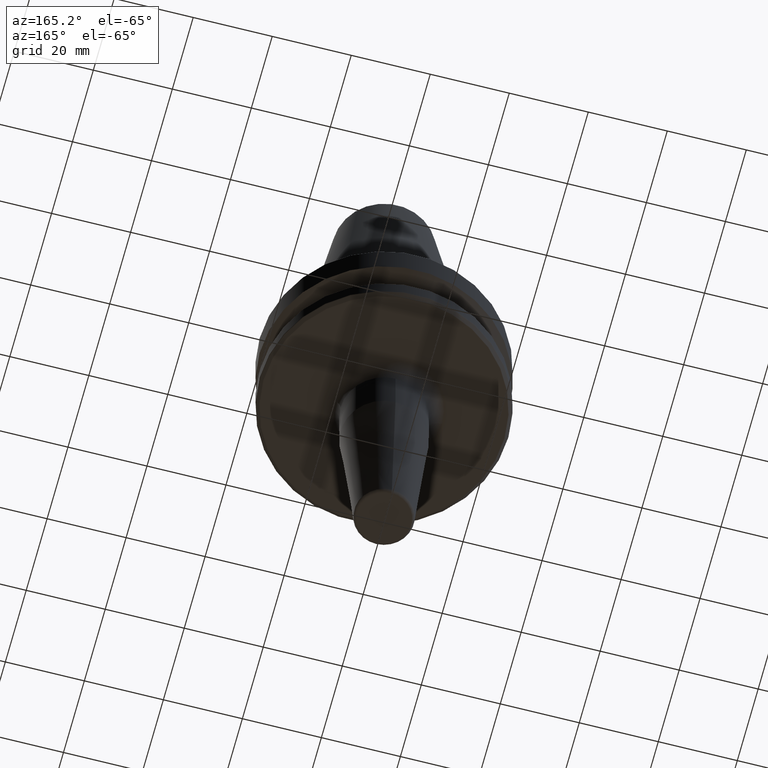
[diagram: clean part render]
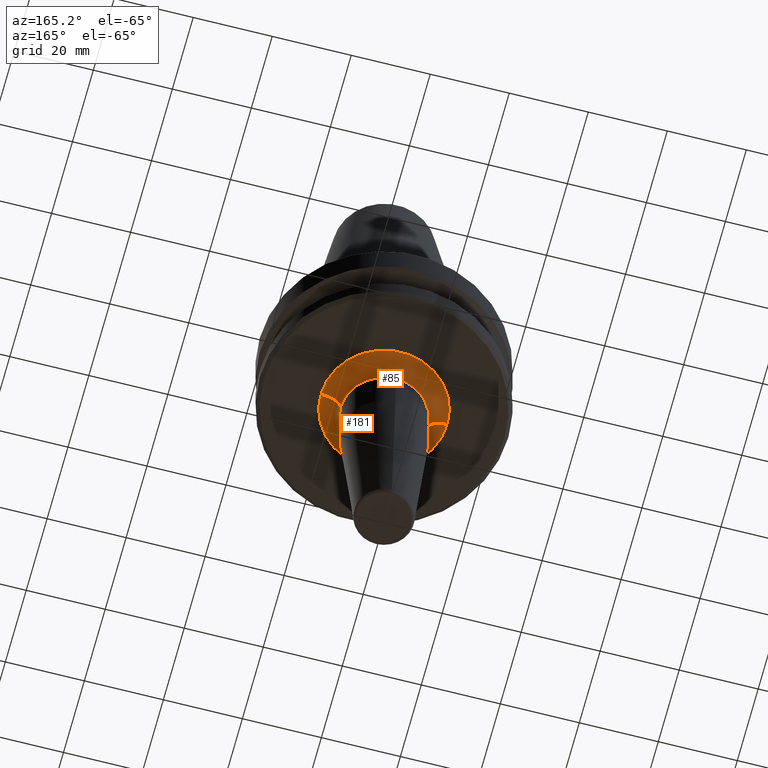
[diagram: same view with one multi-face feature highlighted, each face labeled with its STEP entity id]
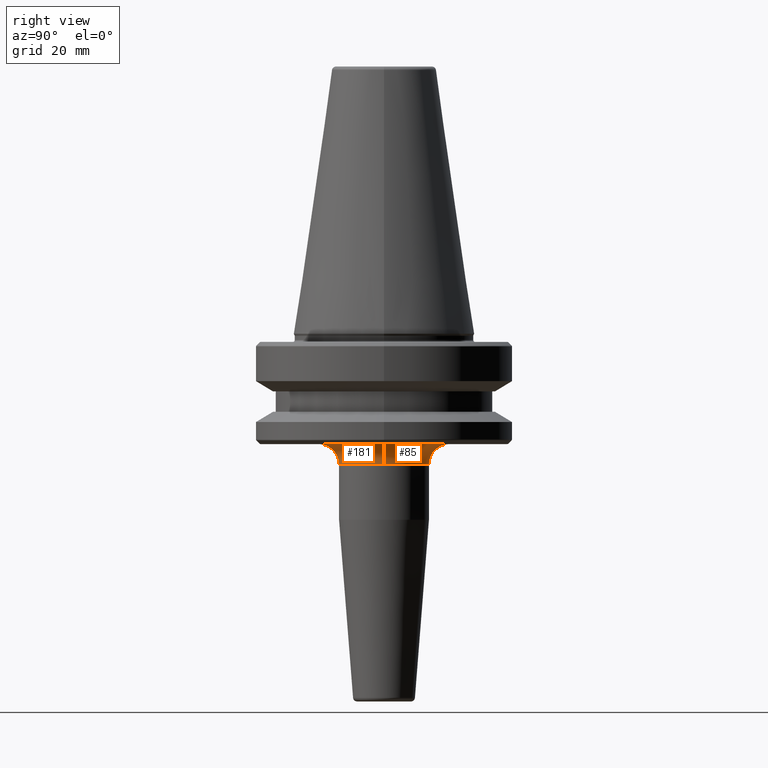
[diagram: same view with one multi-face feature highlighted, each face labeled with its STEP entity id]
A machine part, auxiliary view. The highlighted faces form ONE feature: a constant-radius fillet chain: 2 tangent blend faces with common blend radius 5 mm. The faces share edges in the B-rep.
A second angle (right view) of the same feature is appended — it is thin or edge-on in the first view.
Their STEP definitions:
[1] entity #181 (Torus):
#21 = CIRCLE ( 'NONE', #329, 11.00000000000001200 ) ;
#22 = CIRCLE ( 'NONE', #47, 16.00000000000001400 ) ;
#47 = AXIS2_PLACEMENT_3D ( 'NONE', #343, #1040, #454 ) ;
#135 = DIRECTION ( 'NONE',  ( -0.0000000000000000000, -1.000000000000000000, -0.0000000000000000000 ) ) ;
#181 = ADVANCED_FACE ( 'NONE', ( #1162 ), #362, .F. ) ;
#188 = CIRCLE ( 'NONE', #478, 5.000000000000000900 ) ;
#207 = DIRECTION ( 'NONE',  ( -1.000000000000000000, 0.0000000000000000000, 0.0000000000000000000 ) ) ;
#294 = CARTESIAN_POINT ( 'NONE',  ( 0.0000000000000000000, 1.166330284902243600E-016, -32.00000000000000000 ) ) ;
#328 = CIRCLE ( 'NONE', #724, 4.999999999999997300 ) ;
#329 = AXIS2_PLACEMENT_3D ( 'NONE', #445, #1134, #547 ) ;
#343 = CARTESIAN_POINT ( 'NONE',  ( 0.0000000000000000000, 1.166330284902243600E-016, -27.00000000000000400 ) ) ;
#361 = CIRCLE ( 'NONE', #518, 11.00000000000001200 ) ;
#362 = TOROIDAL_SURFACE ( 'NONE', #734, 16.00000000000001400, 5.000000000000000000 ) ;
#396 = DIRECTION ( 'NONE',  ( -1.000000000000000000, 0.0000000000000000000, 0.0000000000000000000 ) ) ;
#428 = ORIENTED_EDGE ( 'NONE', *, *, #1167, .T. ) ;
#445 = CARTESIAN_POINT ( 'NONE',  ( 0.0000000000000000000, 1.166330284902243600E-016, -32.00000000000000000 ) ) ;
#451 = DIRECTION ( 'NONE',  ( -1.224646799147353200E-016, 1.000000000000000000, 0.0000000000000000000 ) ) ;
#452 = EDGE_CURVE ( 'NONE', #822, #901, #22, .T. ) ;
#454 = DIRECTION ( 'NONE',  ( -1.000000000000000000, 0.0000000000000000000, 0.0000000000000000000 ) ) ;
#478 = AXIS2_PLACEMENT_3D ( 'NONE', #1039, #451, #1143 ) ;
#507 = CARTESIAN_POINT ( 'NONE',  ( 0.0000000000000000000, 1.166330284902243600E-016, -32.00000000000000000 ) ) ;
#514 = EDGE_LOOP ( 'NONE', ( #831, #428, #1117, #772, #1243 ) ) ;
#518 = AXIS2_PLACEMENT_3D ( 'NONE', #294, #989, #396 ) ;
#547 = DIRECTION ( 'NONE',  ( -1.000000000000000000, 0.0000000000000000000, 0.0000000000000000000 ) ) ;
#575 = CARTESIAN_POINT ( 'NONE',  ( 11.00000000000001200, 1.769906207339153100E-015, -32.00000000000000000 ) ) ;
#605 = EDGE_CURVE ( 'NONE', #794, #775, #361, .T. ) ;
#640 = EDGE_CURVE ( 'NONE', #866, #822, #328, .T. ) ;
#724 = AXIS2_PLACEMENT_3D ( 'NONE', #740, #135, #834 ) ;
#734 = AXIS2_PLACEMENT_3D ( 'NONE', #507, #1202, #207 ) ;
#740 = CARTESIAN_POINT ( 'NONE',  ( -16.00000000000001400, 1.166330284902243600E-016, -32.00000000000000000 ) ) ;
#772 = ORIENTED_EDGE ( 'NONE', *, *, #640, .F. ) ;
#775 = VERTEX_POINT ( 'NONE', #872 ) ;
#794 = VERTEX_POINT ( 'NONE', #575 ) ;
#822 = VERTEX_POINT ( 'NONE', #1016 ) ;
#831 = ORIENTED_EDGE ( 'NONE', *, *, #605, .F. ) ;
#834 = DIRECTION ( 'NONE',  ( 0.0000000000000000000, 0.0000000000000000000, -1.000000000000000000 ) ) ;
#866 = VERTEX_POINT ( 'NONE', #945 ) ;
#872 = CARTESIAN_POINT ( 'NONE',  ( 1.347111479062090200E-015, -11.00000000000001200, -32.00000000000000000 ) ) ;
#901 = VERTEX_POINT ( 'NONE', #1043 ) ;
#945 = CARTESIAN_POINT ( 'NONE',  ( -11.00000000000001200, 1.166330284902243600E-016, -32.00000000000000000 ) ) ;
#989 = DIRECTION ( 'NONE',  ( 0.0000000000000000000, 0.0000000000000000000, -1.000000000000000000 ) ) ;
#1016 = CARTESIAN_POINT ( 'NONE',  ( -16.00000000000001400, 1.166330284902243600E-016, -27.00000000000000400 ) ) ;
#1039 = CARTESIAN_POINT ( 'NONE',  ( 16.00000000000001400, 2.076067907125991400E-015, -32.00000000000000000 ) ) ;
#1040 = DIRECTION ( 'NONE',  ( -0.0000000000000000000, -0.0000000000000000000, 1.000000000000000000 ) ) ;
#1043 = CARTESIAN_POINT ( 'NONE',  ( 16.00000000000001400, 2.076067907125991400E-015, -27.00000000000000400 ) ) ;
#1117 = ORIENTED_EDGE ( 'NONE', *, *, #452, .F. ) ;
#1134 = DIRECTION ( 'NONE',  ( 0.0000000000000000000, 0.0000000000000000000, -1.000000000000000000 ) ) ;
#1135 = EDGE_CURVE ( 'NONE', #775, #866, #21, .T. ) ;
#1143 = DIRECTION ( 'NONE',  ( -1.000000000000000000, -1.224646799147353000E-016, 0.0000000000000000000 ) ) ;
#1162 = FACE_OUTER_BOUND ( 'NONE', #514, .T. ) ;
#1167 = EDGE_CURVE ( 'NONE', #794, #901, #188, .T. ) ;
#1202 = DIRECTION ( 'NONE',  ( 0.0000000000000000000, 0.0000000000000000000, -1.000000000000000000 ) ) ;
#1243 = ORIENTED_EDGE ( 'NONE', *, *, #1135, .F. ) ;
[2] entity #85 (Torus):
#25 = EDGE_LOOP ( 'NONE', ( #624, #1081, #1088, #169, #677 ) ) ;
#85 = ADVANCED_FACE ( 'NONE', ( #1046 ), #522, .F. ) ;
#135 = DIRECTION ( 'NONE',  ( -0.0000000000000000000, -1.000000000000000000, -0.0000000000000000000 ) ) ;
#164 = DIRECTION ( 'NONE',  ( 0.0000000000000000000, 0.0000000000000000000, -1.000000000000000000 ) ) ;
#169 = ORIENTED_EDGE ( 'NONE', *, *, #640, .T. ) ;
#172 = EDGE_CURVE ( 'NONE', #866, #1002, #626, .T. ) ;
#188 = CIRCLE ( 'NONE', #478, 5.000000000000000900 ) ;
#328 = CIRCLE ( 'NONE', #724, 4.999999999999997300 ) ;
#337 = DIRECTION ( 'NONE',  ( -0.0000000000000000000, -0.0000000000000000000, 1.000000000000000000 ) ) ;
#340 = CARTESIAN_POINT ( 'NONE',  ( 0.0000000000000000000, 1.166330284902243600E-016, -32.00000000000000000 ) ) ;
#348 = CARTESIAN_POINT ( 'NONE',  ( 0.0000000000000000000, 11.00000000000001200, -32.00000000000000000 ) ) ;
#358 = DIRECTION ( 'NONE',  ( 0.0000000000000000000, 0.0000000000000000000, -1.000000000000000000 ) ) ;
#404 = DIRECTION ( 'NONE',  ( 0.0000000000000000000, 0.0000000000000000000, -1.000000000000000000 ) ) ;
#451 = DIRECTION ( 'NONE',  ( -1.224646799147353200E-016, 1.000000000000000000, 0.0000000000000000000 ) ) ;
#478 = AXIS2_PLACEMENT_3D ( 'NONE', #1039, #451, #1143 ) ;
#522 = TOROIDAL_SURFACE ( 'NONE', #964, 16.00000000000001400, 5.000000000000000000 ) ;
#575 = CARTESIAN_POINT ( 'NONE',  ( 11.00000000000001200, 1.769906207339153100E-015, -32.00000000000000000 ) ) ;
#603 = AXIS2_PLACEMENT_3D ( 'NONE', #996, #404, #1095 ) ;
#624 = ORIENTED_EDGE ( 'NONE', *, *, #1167, .F. ) ;
#626 = CIRCLE ( 'NONE', #603, 11.00000000000001200 ) ;
#640 = EDGE_CURVE ( 'NONE', #866, #822, #328, .T. ) ;
#677 = ORIENTED_EDGE ( 'NONE', *, *, #1252, .F. ) ;
#724 = AXIS2_PLACEMENT_3D ( 'NONE', #740, #135, #834 ) ;
#740 = CARTESIAN_POINT ( 'NONE',  ( -16.00000000000001400, 1.166330284902243600E-016, -32.00000000000000000 ) ) ;
#771 = CARTESIAN_POINT ( 'NONE',  ( 0.0000000000000000000, 1.166330284902243600E-016, -32.00000000000000000 ) ) ;
#794 = VERTEX_POINT ( 'NONE', #575 ) ;
#822 = VERTEX_POINT ( 'NONE', #1016 ) ;
#834 = DIRECTION ( 'NONE',  ( 0.0000000000000000000, 0.0000000000000000000, -1.000000000000000000 ) ) ;
#862 = DIRECTION ( 'NONE',  ( -1.000000000000000000, 0.0000000000000000000, 0.0000000000000000000 ) ) ;
#866 = VERTEX_POINT ( 'NONE', #945 ) ;
#901 = VERTEX_POINT ( 'NONE', #1043 ) ;
#929 = AXIS2_PLACEMENT_3D ( 'NONE', #938, #337, #1035 ) ;
#938 = CARTESIAN_POINT ( 'NONE',  ( 0.0000000000000000000, 1.166330284902243600E-016, -27.00000000000000400 ) ) ;
#945 = CARTESIAN_POINT ( 'NONE',  ( -11.00000000000001200, 1.166330284902243600E-016, -32.00000000000000000 ) ) ;
#964 = AXIS2_PLACEMENT_3D ( 'NONE', #340, #358, #1057 ) ;
#996 = CARTESIAN_POINT ( 'NONE',  ( 0.0000000000000000000, 1.166330284902243600E-016, -32.00000000000000000 ) ) ;
#1002 = VERTEX_POINT ( 'NONE', #348 ) ;
#1016 = CARTESIAN_POINT ( 'NONE',  ( -16.00000000000001400, 1.166330284902243600E-016, -27.00000000000000400 ) ) ;
#1035 = DIRECTION ( 'NONE',  ( -1.000000000000000000, 0.0000000000000000000, 0.0000000000000000000 ) ) ;
#1039 = CARTESIAN_POINT ( 'NONE',  ( 16.00000000000001400, 2.076067907125991400E-015, -32.00000000000000000 ) ) ;
#1043 = CARTESIAN_POINT ( 'NONE',  ( 16.00000000000001400, 2.076067907125991400E-015, -27.00000000000000400 ) ) ;
#1046 = FACE_OUTER_BOUND ( 'NONE', #25, .T. ) ;
#1056 = EDGE_CURVE ( 'NONE', #1002, #794, #1138, .T. ) ;
#1057 = DIRECTION ( 'NONE',  ( -1.000000000000000000, 0.0000000000000000000, 0.0000000000000000000 ) ) ;
#1081 = ORIENTED_EDGE ( 'NONE', *, *, #1056, .F. ) ;
#1088 = ORIENTED_EDGE ( 'NONE', *, *, #172, .F. ) ;
#1095 = DIRECTION ( 'NONE',  ( -1.000000000000000000, 0.0000000000000000000, 0.0000000000000000000 ) ) ;
#1138 = CIRCLE ( 'NONE', #1280, 11.00000000000001200 ) ;
#1143 = DIRECTION ( 'NONE',  ( -1.000000000000000000, -1.224646799147353000E-016, 0.0000000000000000000 ) ) ;
#1167 = EDGE_CURVE ( 'NONE', #794, #901, #188, .T. ) ;
#1185 = CIRCLE ( 'NONE', #929, 16.00000000000001400 ) ;
#1252 = EDGE_CURVE ( 'NONE', #901, #822, #1185, .T. ) ;
#1280 = AXIS2_PLACEMENT_3D ( 'NONE', #771, #164, #862 ) ;